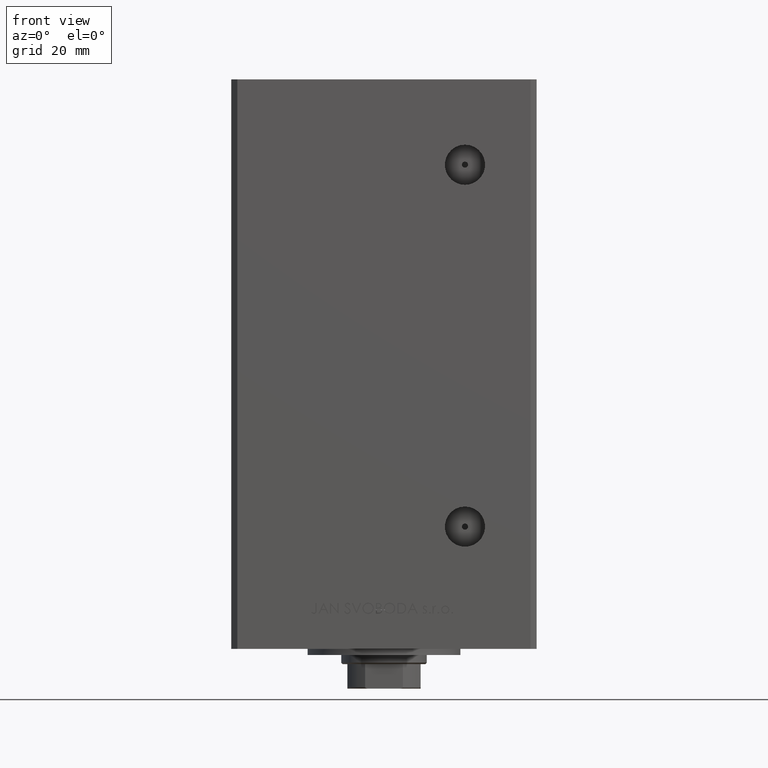
[diagram: clean part render]
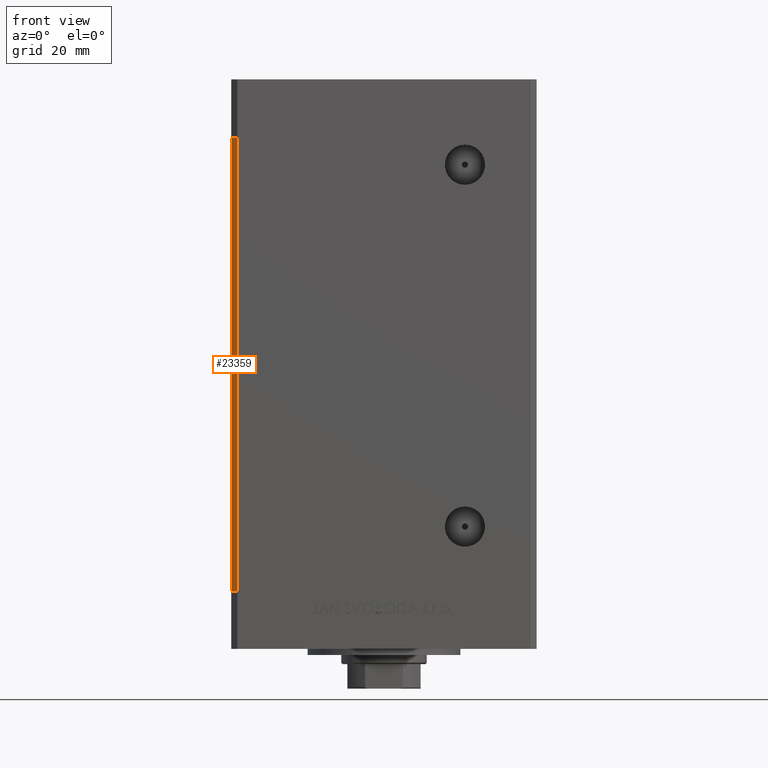
[diagram: same view with one face highlighted and labeled with its STEP entity id]
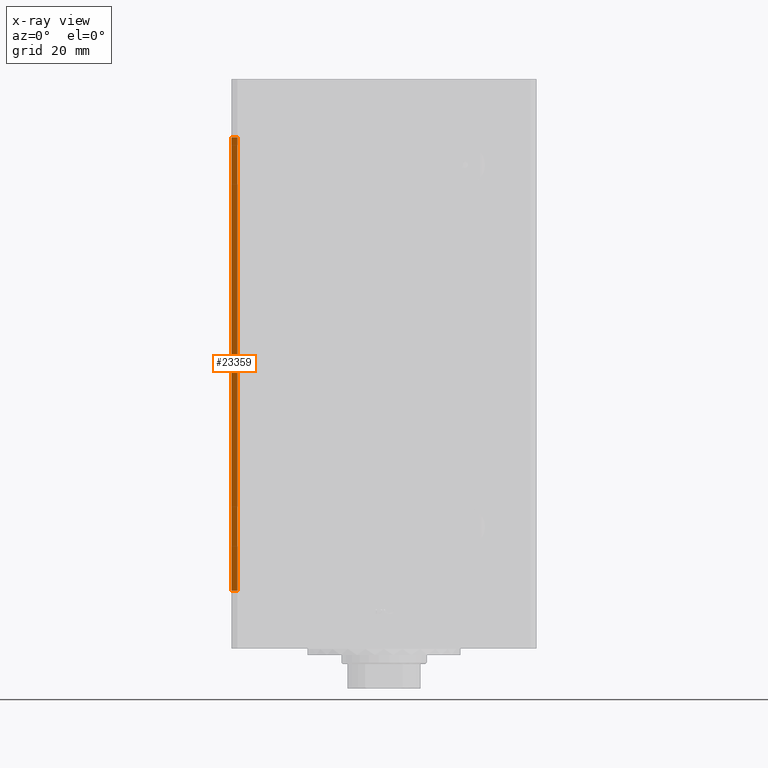
[diagram: x-ray of the same camera — body ghosted, the highlighted face saturated]
A machine part, front view. The second image highlights one B-rep face of the part: STEP entity #23359.
The next image is the same camera in x-ray: the body ghosted, the highlighted face saturated — about 0% of this face is hidden behind the body in this view.
In plain terms, the highlighted planar face has unit normal (0.7071, 0.7071, 0).
Its self-contained STEP definition (entity closure, byte-faithful):
#1057 = LINE ( 'NONE', #35341, #9391 ) ;
#1120 = VERTEX_POINT ( 'NONE', #34925 ) ;
#2291 = CARTESIAN_POINT ( 'NONE',  ( -47.99999999999998579, -43.50000000000000000, 0.000000000000000000 ) ) ;
#5169 = LINE ( 'NONE', #28995, #27757 ) ;
#8830 = LINE ( 'NONE', #20498, #44598 ) ;
#8983 = EDGE_LOOP ( 'NONE', ( #36874, #16415, #32191, #32456 ) ) ;
#9177 = DIRECTION ( 'NONE',  ( 0.7071067811865474617, -0.7071067811865474617, 0.000000000000000000 ) ) ;
#9391 = VECTOR ( 'NONE', #9177, 1000.000000000000114 ) ;
#10082 = EDGE_CURVE ( 'NONE', #1120, #25637, #8830, .T. ) ;
#11820 = VECTOR ( 'NONE', #12923, 1000.000000000000114 ) ;
#12360 = FACE_OUTER_BOUND ( 'NONE', #8983, .T. ) ;
#12923 = DIRECTION ( 'NONE',  ( 0.7071067811865474617, -0.7071067811865474617, 0.000000000000000000 ) ) ;
#13307 = EDGE_CURVE ( 'NONE', #45202, #50129, #5169, .T. ) ;
#16415 = ORIENTED_EDGE ( 'NONE', *, *, #10082, .F. ) ;
#17477 = CARTESIAN_POINT ( 'NONE',  ( -49.99999999999998579, -41.49999999999999289, 0.000000000000000000 ) ) ;
#17857 = CARTESIAN_POINT ( 'NONE',  ( -49.99999999999998579, -41.49999999999999289, 148.5000000000000000 ) ) ;
#20498 = CARTESIAN_POINT ( 'NONE',  ( -47.99999999999998579, -43.50000000000000000, 148.5000000000000000 ) ) ;
#23151 = EDGE_CURVE ( 'NONE', #50129, #25637, #47706, .T. ) ;
#23169 = AXIS2_PLACEMENT_3D ( 'NONE', #35210, #34460, #30643 ) ;
#23359 = ADVANCED_FACE ( 'NONE', ( #12360 ), #42331, .F. ) ;
#23928 = CARTESIAN_POINT ( 'NONE',  ( -49.99999999999998579, -41.49999999999999289, 0.000000000000000000 ) ) ;
#24115 = EDGE_CURVE ( 'NONE', #45202, #1120, #1057, .T. ) ;
#24307 = DIRECTION ( 'NONE',  ( -0.000000000000000000, -0.000000000000000000, -1.000000000000000000 ) ) ;
#25637 = VERTEX_POINT ( 'NONE', #2291 ) ;
#27757 = VECTOR ( 'NONE', #48315, 1000.000000000000000 ) ;
#28995 = CARTESIAN_POINT ( 'NONE',  ( -49.99999999999998579, -41.49999999999999289, 148.5000000000000000 ) ) ;
#30643 = DIRECTION ( 'NONE',  ( -0.7071067811865474617, 0.7071067811865474617, 0.000000000000000000 ) ) ;
#32191 = ORIENTED_EDGE ( 'NONE', *, *, #24115, .F. ) ;
#32456 = ORIENTED_EDGE ( 'NONE', *, *, #13307, .T. ) ;
#34460 = DIRECTION ( 'NONE',  ( 0.7071067811865475727, 0.7071067811865475727, -0.000000000000000000 ) ) ;
#34925 = CARTESIAN_POINT ( 'NONE',  ( -47.99999999999998579, -43.50000000000000000, 148.5000000000000000 ) ) ;
#35210 = CARTESIAN_POINT ( 'NONE',  ( -49.99999999999998579, -41.49999999999999289, 148.5000000000000000 ) ) ;
#35341 = CARTESIAN_POINT ( 'NONE',  ( -49.99999999999998579, -41.49999999999999289, 148.5000000000000000 ) ) ;
#36874 = ORIENTED_EDGE ( 'NONE', *, *, #23151, .T. ) ;
#42331 = PLANE ( 'NONE',  #23169 ) ;
#44598 = VECTOR ( 'NONE', #24307, 1000.000000000000000 ) ;
#45202 = VERTEX_POINT ( 'NONE', #17857 ) ;
#47706 = LINE ( 'NONE', #17477, #11820 ) ;
#48315 = DIRECTION ( 'NONE',  ( -0.000000000000000000, -0.000000000000000000, -1.000000000000000000 ) ) ;
#50129 = VERTEX_POINT ( 'NONE', #23928 ) ;